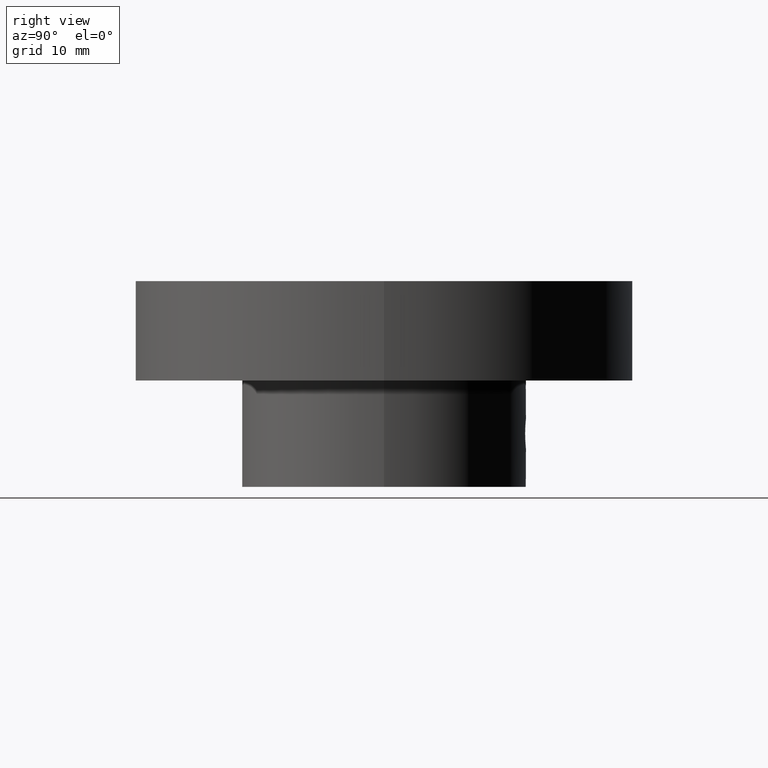
[diagram: clean part render]
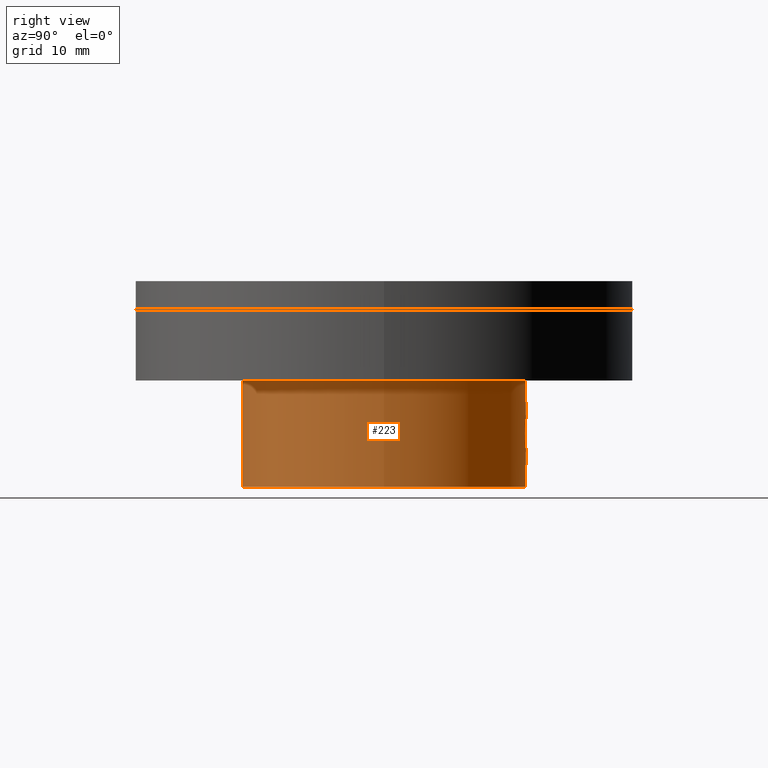
[diagram: same view with one face highlighted and labeled with its STEP entity id]
A machine part, right view. The second image highlights one B-rep face of the part: STEP entity #223.
In plain terms, the highlighted cylindrical surface (bore or boss wall) has radius 20 mm, axis along (-0, 0, -1).
Its self-contained STEP definition (entity closure, byte-faithful):
#223 = ADVANCED_FACE( '', ( #265, #266, #267 ), #268, .T. );
#265 = FACE_BOUND( '', #337, .T. );
#266 = FACE_OUTER_BOUND( '', #338, .T. );
#267 = FACE_OUTER_BOUND( '', #339, .T. );
#268 = CYLINDRICAL_SURFACE( '', #340, 20.0000000000000 );
#337 = EDGE_LOOP( '', ( #438 ) );
#338 = EDGE_LOOP( '', ( #439 ) );
#339 = EDGE_LOOP( '', ( #440 ) );
#340 = AXIS2_PLACEMENT_3D( '', #441, #442, #443 );
#438 = ORIENTED_EDGE( '', *, *, #580, .F. );
#439 = ORIENTED_EDGE( '', *, *, #563, .T. );
#440 = ORIENTED_EDGE( '', *, *, #581, .F. );
#441 = CARTESIAN_POINT( '', ( 0.000000000000000, 0.000000000000000, -39.0000000000000 ) );
#442 = DIRECTION( '', ( -0.000000000000000, 0.000000000000000, -1.00000000000000 ) );
#443 = DIRECTION( '', ( -1.00000000000000, 0.000000000000000, 0.000000000000000 ) );
#563 = EDGE_CURVE( '', #609, #609, #610, .T. );
#580 = EDGE_CURVE( '', #639, #639, #640, .T. );
#581 = EDGE_CURVE( '', #641, #641, #642, .T. );
#609 = VERTEX_POINT( '', #689 );
#610 = CIRCLE( '', #690, 20.0000000000000 );
#639 = VERTEX_POINT( '', #788 );
#640 = B_SPLINE_CURVE_WITH_KNOTS( '', 3, ( #789, #790, #791, #792, #793, #794, #795, #796, #797, #798, #799, #800, #801, #802, #803, #804, #805, #806, #807, #808, #809, #810, #811, #812, #813, #814, #815, #816, #817, #818, #819, #820, #821, #822, #823, #824, #825, #826, #827, #828, #829, #830, #831, #832, #833, #834, #835, #836, #837, #838, #839, #840, #841, #842 ), .UNSPECIFIED., .T., .F., ( 2, 2, 2, 2, 2, 2, 2, 2, 2, 2, 2, 2, 2, 2, 2, 2, 2, 2, 2, 2, 2, 2, 2, 2, 2, 2, 2, 2, 2 ), ( -0.000821163446587748, 0.000000000000000, 0.000410581723293871, 0.000821163446587741, 0.00123174516988161, 0.00164232689317548, 0.00246349033976322, 0.00328465378635097, 0.00369523550964484, 0.00410581723293871, 0.00451639895623258, 0.00492698067952645, 0.00533756240282032, 0.00574814412611419, 0.00615872584940806, 0.00656930757270193, 0.00739047101928970, 0.00821163446587746, 0.00862221618917134, 0.00903279791246521, 0.00944337963575908, 0.00985396135905295, 0.0102645430823468, 0.0106751248056407, 0.0110857065289346, 0.0114962882522284, 0.0123174516988162, 0.0131386151454039, 0.0135491968686978 ), .UNSPECIFIED. );
#641 = VERTEX_POINT( '', #843 );
#642 = CIRCLE( '', #844, 20.0000000000000 );
#689 = CARTESIAN_POINT( '', ( 20.0000000000000, 0.000000000000000, -39.0000000000000 ) );
#690 = AXIS2_PLACEMENT_3D( '', #933, #934, #935 );
#788 = CARTESIAN_POINT( '', ( -2.10000000000000, 19.8894444366855, -31.5000000000000 ) );
#789 = CARTESIAN_POINT( '', ( -2.10000000000000, 19.8894444366855, -31.7776771849484 ) );
#790 = CARTESIAN_POINT( '', ( -2.10000000000000, 19.8894444366855, -31.3611614075258 ) );
#791 = CARTESIAN_POINT( '', ( -2.08636700651663, 19.8908972450046, -31.2246621609851 ) );
#792 = CARTESIAN_POINT( '', ( -2.03296828274487, 19.8964258212013, -30.9561450810851 ) );
#793 = CARTESIAN_POINT( '', ( -1.99254751251045, 19.9005668289923, -30.8227286617630 ) );
#794 = CARTESIAN_POINT( '', ( -1.88710917802257, 19.9108418871484, -30.5684630949705 ) );
#795 = CARTESIAN_POINT( '', ( -1.82260119526382, 19.9169268485839, -30.4478833145189 ) );
#796 = CARTESIAN_POINT( '', ( -1.67021219422513, 19.9302845297071, -30.2196813431390 ) );
#797 = CARTESIAN_POINT( '', ( -1.58157614723022, 19.9376036563726, -30.1117080419054 ) );
#798 = CARTESIAN_POINT( '', ( -1.29116845871563, 19.9592227975836, -29.8213592722655 ) );
#799 = CARTESIAN_POINT( '', ( -1.05703255291418, 19.9736480165375, -29.6649285784720 ) );
#800 = CARTESIAN_POINT( '', ( -0.551742581960599, 19.9939869218149, -29.4554010018391 ) );
#801 = CARTESIAN_POINT( '', ( -0.275265372064456, 19.9999841916405, -29.4001505558275 ) );
#802 = CARTESIAN_POINT( '', ( 0.135906190697198, 20.0000078545000, -29.3999251952270 ) );
#803 = CARTESIAN_POINT( '', ( 0.275134808803891, 19.9985612639562, -29.4135764019416 ) );
#804 = CARTESIAN_POINT( '', ( 0.544535395807607, 19.9930396136740, -29.4671832851279 ) );
#805 = CARTESIAN_POINT( '', ( 0.675485208301387, 19.9889949963069, -29.5068461542688 ) );
#806 = CARTESIAN_POINT( '', ( 0.929848208336217, 19.9787783294793, -29.6120580441017 ) );
#807 = CARTESIAN_POINT( '', ( 1.05270242619260, 19.9726011484182, -29.6777695921894 ) );
#808 = CARTESIAN_POINT( '', ( 1.28016569581092, 19.9593124837299, -29.8297060592427 ) );
#809 = CARTESIAN_POINT( '', ( 1.38622716835049, 19.9521438664748, -29.9164619690637 ) );
#810 = CARTESIAN_POINT( '', ( 1.58236351455577, 19.9375474002843, -30.1124322843561 ) );
#811 = CARTESIAN_POINT( '', ( 1.66919311303885, 19.9303693672166, -30.2184015635781 ) );
#812 = CARTESIAN_POINT( '', ( 1.82130330811542, 19.9170450374083, -30.4456971684079 ) );
#813 = CARTESIAN_POINT( '', ( 1.88711212514930, 19.9108416166091, -30.5684674184593 ) );
#814 = CARTESIAN_POINT( '', ( 1.99255702856719, 19.9005658849814, -30.8227543936910 ) );
#815 = CARTESIAN_POINT( '', ( 2.03232519592884, 19.8964918151816, -30.9536473725528 ) );
#816 = CARTESIAN_POINT( '', ( 2.08615793075595, 19.8909194694850, -31.2228863347474 ) );
#817 = CARTESIAN_POINT( '', ( 2.09994926683242, 19.8894497932778, -31.3621345517398 ) );
#818 = CARTESIAN_POINT( '', ( 2.10010103736386, 19.8894337687933, -31.7734060226828 ) );
#819 = CARTESIAN_POINT( '', ( 2.04511040547797, 19.8954407050881, -32.0498745026592 ) );
#820 = CARTESIAN_POINT( '', ( 1.83598354816333, 19.9158279223120, -32.5554633817156 ) );
#821 = CARTESIAN_POINT( '', ( 1.67975986150077, 19.9302790061295, -32.7897148542924 ) );
#822 = CARTESIAN_POINT( '', ( 1.38964766186880, 19.9518992326415, -33.0803856413184 ) );
#823 = CARTESIAN_POINT( '', ( 1.28174506758662, 19.9592128020052, -33.1691167372387 ) );
#824 = CARTESIAN_POINT( '', ( 1.05369576745496, 19.9725504461413, -33.3216877697511 ) );
#825 = CARTESIAN_POINT( '', ( 0.933191970037336, 19.9786216165791, -33.3862887746121 ) );
#826 = CARTESIAN_POINT( '', ( 0.679084256237531, 19.9888722424332, -33.4919280024891 ) );
#827 = CARTESIAN_POINT( '', ( 0.545661189400149, 19.9930057614698, -33.5324839387912 ) );
#828 = CARTESIAN_POINT( '', ( 0.277199768626402, 19.9985295909489, -33.5861201747108 ) );
#829 = CARTESIAN_POINT( '', ( 0.140748090686113, 19.9999861564342, -33.5998681564585 ) );
#830 = CARTESIAN_POINT( '', ( -0.136785924546643, 20.0000136473313, -33.6001299746411 ) );
#831 = CARTESIAN_POINT( '', ( -0.273470454792162, 19.9985812511769, -33.5866123160923 ) );
#832 = CARTESIAN_POINT( '', ( -0.542026981858891, 19.9931049339643, -33.5334561215451 ) );
#833 = CARTESIAN_POINT( '', ( -0.675421392537236, 19.9889974014788, -33.4931783389943 ) );
#834 = CARTESIAN_POINT( '', ( -0.929862461120042, 19.9787779150083, -33.3879379629461 ) );
#835 = CARTESIAN_POINT( '', ( -1.05050697381952, 19.9727191453473, -33.3235279183662 ) );
#836 = CARTESIAN_POINT( '', ( -1.27881048052864, 19.9594017624741, -33.1713655273442 ) );
#837 = CARTESIAN_POINT( '', ( -1.38687808745298, 19.9520927963513, -33.0828175628248 ) );
#838 = CARTESIAN_POINT( '', ( -1.67751971521281, 19.9304711118366, -32.7926316844514 ) );
#839 = CARTESIAN_POINT( '', ( -1.83413694126365, 19.9160003139216, -32.5586530858035 ) );
#840 = CARTESIAN_POINT( '', ( -2.04411051774112, 19.8955457078888, -32.0535493353345 ) );
#841 = CARTESIAN_POINT( '', ( -2.10000000000000, 19.8894444366855, -31.7776771849484 ) );
#842 = CARTESIAN_POINT( '', ( -2.10000000000000, 19.8894444366855, -31.3611614075258 ) );
#843 = CARTESIAN_POINT( '', ( 20.0000000000000, 0.000000000000000, -24.0000000000000 ) );
#844 = AXIS2_PLACEMENT_3D( '', #965, #966, #967 );
#933 = CARTESIAN_POINT( '', ( 0.000000000000000, 0.000000000000000, -39.0000000000000 ) );
#934 = DIRECTION( '', ( 0.000000000000000, -0.000000000000000, 1.00000000000000 ) );
#935 = DIRECTION( '', ( 1.00000000000000, 0.000000000000000, 0.000000000000000 ) );
#965 = CARTESIAN_POINT( '', ( 0.000000000000000, 0.000000000000000, -24.0000000000000 ) );
#966 = DIRECTION( '', ( 0.000000000000000, -0.000000000000000, 1.00000000000000 ) );
#967 = DIRECTION( '', ( 1.00000000000000, 0.000000000000000, 0.000000000000000 ) );